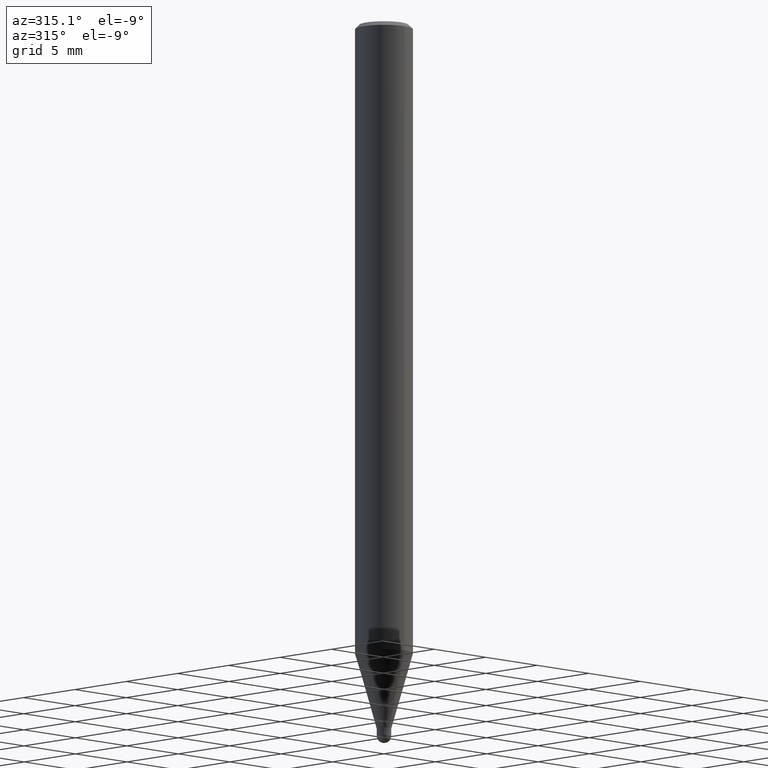
[diagram: clean part render]
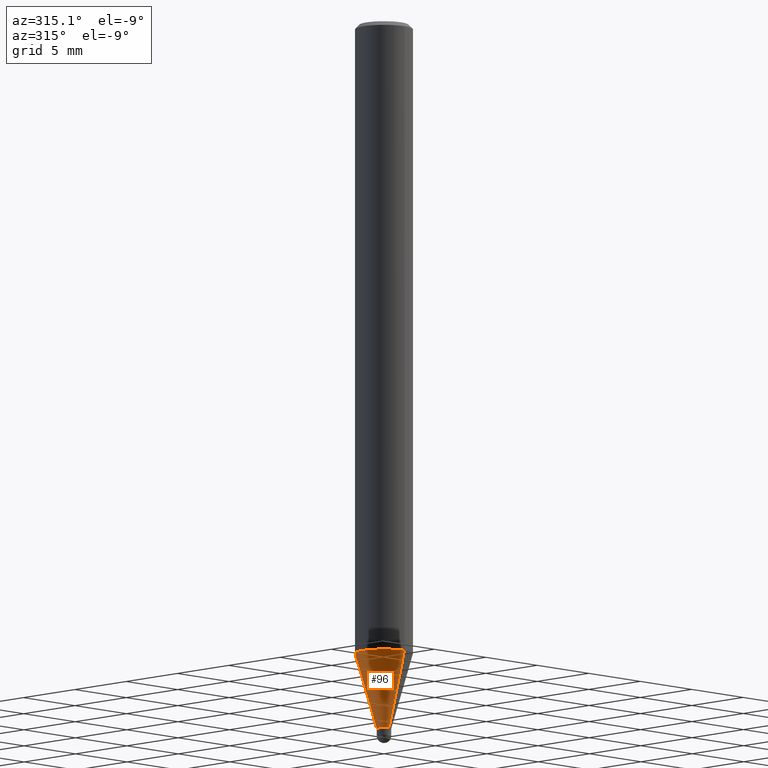
[diagram: same view with one face highlighted and labeled with its STEP entity id]
A machine part, auxiliary view. The second image highlights one B-rep face of the part: STEP entity #96.
In plain terms, the highlighted conical surface has half-angle 16 deg.
Its self-contained STEP definition (entity closure, byte-faithful):
#96=ADVANCED_FACE('',(#222),#223,.T.);
#108=VERTEX_POINT('',#236);
#118=VERTEX_POINT('',#247);
#124=VERTEX_POINT('',#253);
#132=EDGE_CURVE('',#108,#124,#263,.T.);
#134=VERTEX_POINT('',#265);
#136=EDGE_CURVE('',#134,#118,#267,.T.);
#142=EDGE_CURVE('',#108,#134,#273,.T.);
#150=EDGE_CURVE('',#118,#124,#282,.T.);
#222=FACE_OUTER_BOUND('',#356,.T.);
#223=CONICAL_SURFACE('',#357,1.24995,0.279258842899557);
#236=CARTESIAN_POINT('',(6.12241946593498E-017,-0.49995,-49.0));
#247=CARTESIAN_POINT('',(0.0,1.99995,-43.769));
#253=CARTESIAN_POINT('',(0.0,0.49995,-49.0));
#263=CIRCLE('',#405,0.49995);
#265=CARTESIAN_POINT('',(2.44915147732706E-016,-1.99995,-43.769));
#267=CIRCLE('',#410,1.99995);
#273=LINE('',#416,#417);
#282=LINE('',#428,#429);
#356=EDGE_LOOP('',(#508,#509,#510,#511));
#357=AXIS2_PLACEMENT_3D('',#512,#513,#514);
#405=AXIS2_PLACEMENT_3D('',#560,#561,#562);
#410=AXIS2_PLACEMENT_3D('',#563,#564,#565);
#416=CARTESIAN_POINT('',(1.53069671196028E-016,-1.24995,-46.3845));
#417=VECTOR('',#567,1.0);
#428=CARTESIAN_POINT('',(-1.53069671196028E-016,1.24995,-46.3845));
#429=VECTOR('',#579,1.0);
#508=ORIENTED_EDGE('',*,*,#150,.T.);
#509=ORIENTED_EDGE('',*,*,#132,.F.);
#510=ORIENTED_EDGE('',*,*,#142,.T.);
#511=ORIENTED_EDGE('',*,*,#136,.T.);
#512=CARTESIAN_POINT('',(0.0,0.0,-46.3845));
#513=DIRECTION('',(-0.0,-0.0,1.0));
#514=DIRECTION('',(0.0,1.0,0.0));
#560=CARTESIAN_POINT('',(0.0,0.0,-49.0));
#561=DIRECTION('',(0.0,0.0,-1.0));
#562=DIRECTION('',(0.0,1.0,0.0));
#563=CARTESIAN_POINT('',(0.0,0.0,-43.769));
#564=DIRECTION('',(0.0,0.0,-1.0));
#565=DIRECTION('',(0.0,1.0,0.0));
#567=DIRECTION('',(3.37554511665357E-017,-0.275643279664314,0.961259997282682));
#579=DIRECTION('',(3.37554511665357E-017,-0.275643279664314,-0.961259997282682));